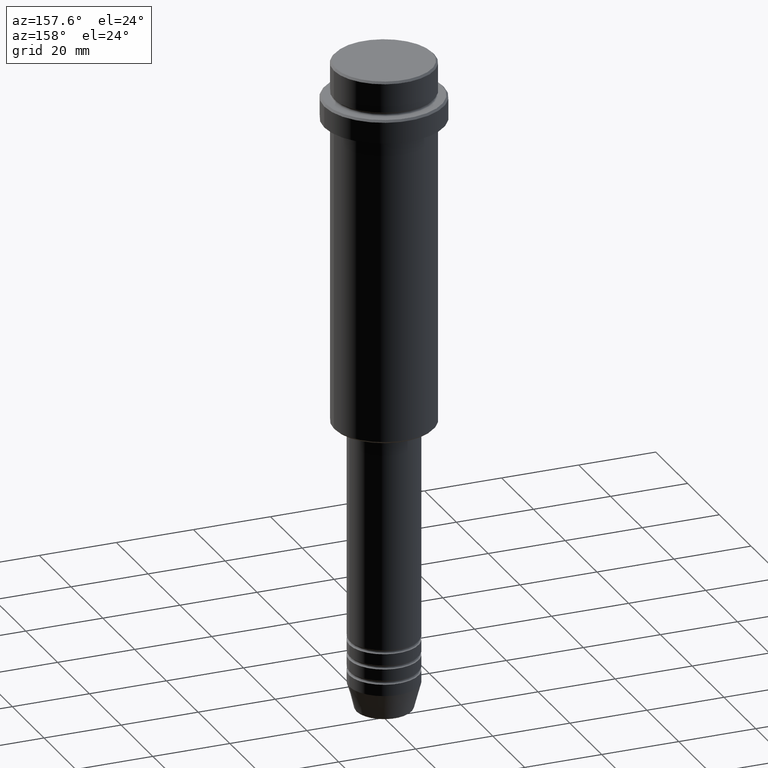
[diagram: clean part render]
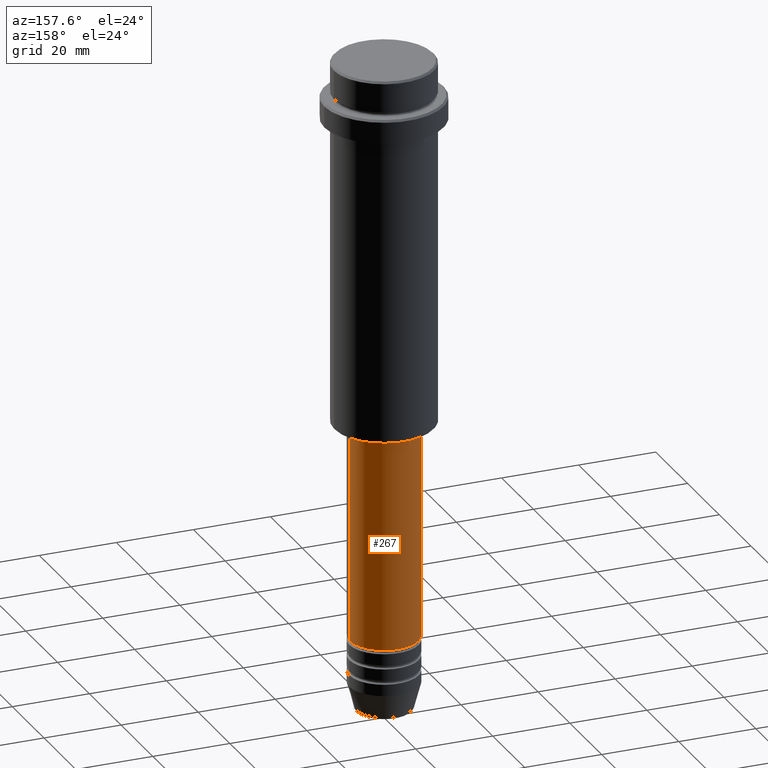
[diagram: same view with one face highlighted and labeled with its STEP entity id]
A machine part, auxiliary view. The second image highlights one B-rep face of the part: STEP entity #267.
In plain terms, the highlighted cylindrical surface (partial cylindrical patch) has radius 9 mm, axis along (-0, -0, 1).
Its self-contained STEP definition (entity closure, byte-faithful):
#2 = AXIS2_PLACEMENT_3D ( 'NONE', #539, #1114, #675 ) ;
#47 = VECTOR ( 'NONE', #734, 1000.000000000000000 ) ;
#98 = EDGE_CURVE ( 'NONE', #170, #173, #812, .T. ) ;
#126 = EDGE_CURVE ( 'NONE', #556, #1204, #1067, .T. ) ;
#140 = DIRECTION ( 'NONE',  ( 1.000000000000000000, 0.000000000000000000, 0.000000000000000000 ) ) ;
#170 = VERTEX_POINT ( 'NONE', #728 ) ;
#173 = VERTEX_POINT ( 'NONE', #1073 ) ;
#219 = FACE_OUTER_BOUND ( 'NONE', #874, .T. ) ;
#230 = CIRCLE ( 'NONE', #405, 9.000000000000000000 ) ;
#267 = ADVANCED_FACE ( 'NONE', ( #219 ), #353, .T. ) ;
#269 = DIRECTION ( 'NONE',  ( -0.000000000000000000, -0.000000000000000000, 1.000000000000000000 ) ) ;
#353 = CYLINDRICAL_SURFACE ( 'NONE', #2, 9.000000000000001776 ) ;
#405 = AXIS2_PLACEMENT_3D ( 'NONE', #419, #872, #1331 ) ;
#419 = CARTESIAN_POINT ( 'NONE',  ( 0.000000000000000000, 0.000000000000000000, -150.9999999999999147 ) ) ;
#469 = ORIENTED_EDGE ( 'NONE', *, *, #1324, .T. ) ;
#539 = CARTESIAN_POINT ( 'NONE',  ( 0.000000000000000000, 0.000000000000000000, 0.000000000000000000 ) ) ;
#551 = EDGE_CURVE ( 'NONE', #173, #1204, #799, .T. ) ;
#556 = VERTEX_POINT ( 'NONE', #780 ) ;
#583 = ORIENTED_EDGE ( 'NONE', *, *, #551, .F. ) ;
#593 = CARTESIAN_POINT ( 'NONE',  ( 9.000000000000001776, 0.000000000000000000, 0.000000000000000000 ) ) ;
#675 = DIRECTION ( 'NONE',  ( 1.000000000000000000, 0.000000000000000000, 0.000000000000000000 ) ) ;
#715 = CARTESIAN_POINT ( 'NONE',  ( -9.000000000000001776, 1.102182119232617911E-15, -96.00000000000000000 ) ) ;
#728 = CARTESIAN_POINT ( 'NONE',  ( 9.000000000000000000, 0.000000000000000000, -150.9999999999999147 ) ) ;
#734 = DIRECTION ( 'NONE',  ( -0.000000000000000000, -0.000000000000000000, 1.000000000000000000 ) ) ;
#775 = AXIS2_PLACEMENT_3D ( 'NONE', #1229, #1118, #140 ) ;
#780 = CARTESIAN_POINT ( 'NONE',  ( -9.000000000000000000, 1.102182119232617714E-15, -150.9999999999999147 ) ) ;
#799 = CIRCLE ( 'NONE', #775, 9.000000000000001776 ) ;
#812 = LINE ( 'NONE', #593, #1055 ) ;
#872 = DIRECTION ( 'NONE',  ( -0.000000000000000000, -0.000000000000000000, 1.000000000000000000 ) ) ;
#874 = EDGE_LOOP ( 'NONE', ( #469, #1048, #583, #971 ) ) ;
#971 = ORIENTED_EDGE ( 'NONE', *, *, #98, .F. ) ;
#1048 = ORIENTED_EDGE ( 'NONE', *, *, #126, .T. ) ;
#1055 = VECTOR ( 'NONE', #269, 1000.000000000000000 ) ;
#1067 = LINE ( 'NONE', #1188, #47 ) ;
#1073 = CARTESIAN_POINT ( 'NONE',  ( 9.000000000000001776, 0.000000000000000000, -96.00000000000000000 ) ) ;
#1114 = DIRECTION ( 'NONE',  ( -0.000000000000000000, -0.000000000000000000, 1.000000000000000000 ) ) ;
#1118 = DIRECTION ( 'NONE',  ( -0.000000000000000000, -0.000000000000000000, 1.000000000000000000 ) ) ;
#1188 = CARTESIAN_POINT ( 'NONE',  ( -9.000000000000001776, 1.102182119232617911E-15, 0.000000000000000000 ) ) ;
#1204 = VERTEX_POINT ( 'NONE', #715 ) ;
#1229 = CARTESIAN_POINT ( 'NONE',  ( 0.000000000000000000, 0.000000000000000000, -96.00000000000000000 ) ) ;
#1324 = EDGE_CURVE ( 'NONE', #170, #556, #230, .T. ) ;
#1331 = DIRECTION ( 'NONE',  ( 1.000000000000000000, 0.000000000000000000, 0.000000000000000000 ) ) ;